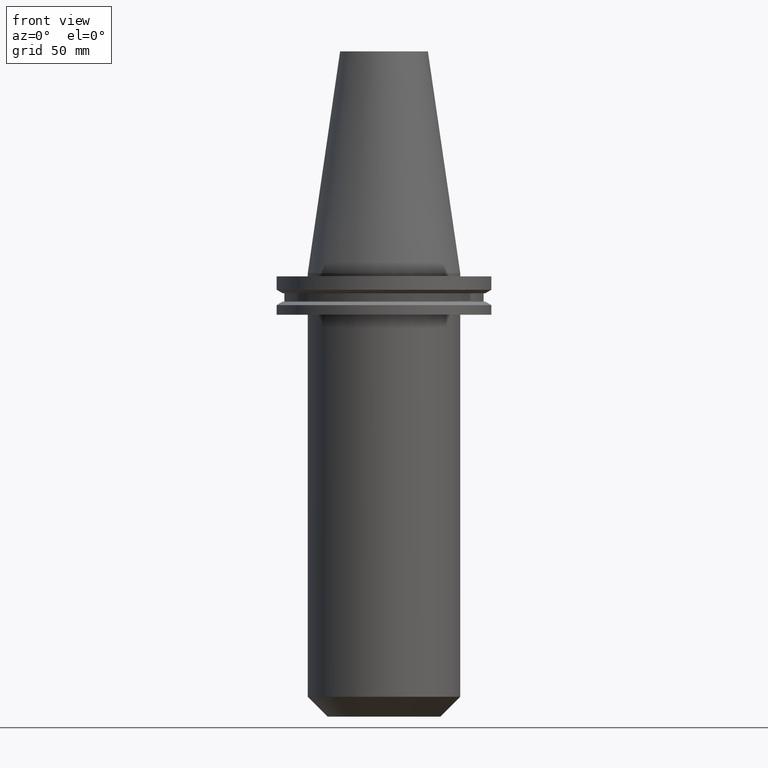
[diagram: clean part render]
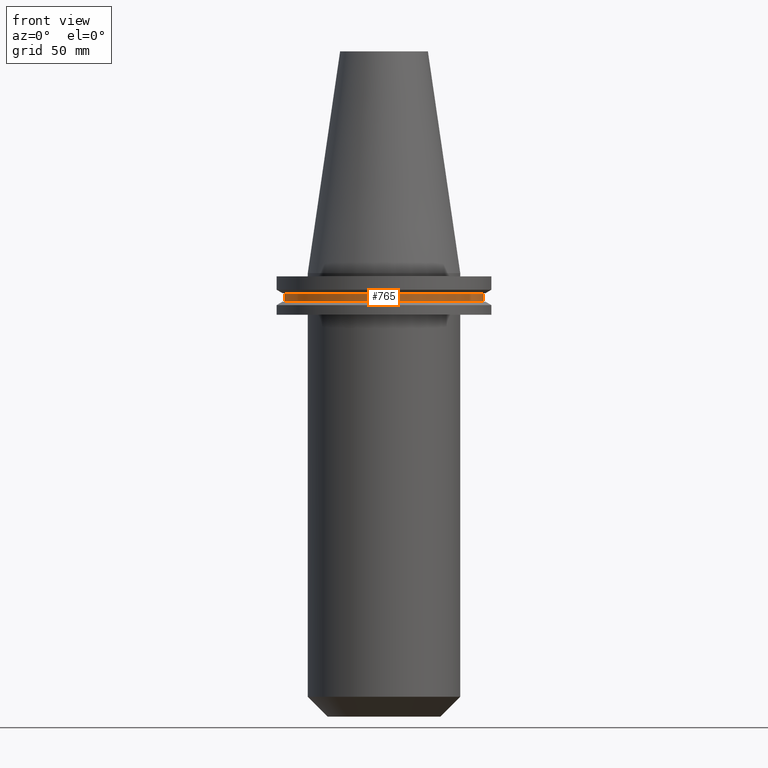
[diagram: same view with one face highlighted and labeled with its STEP entity id]
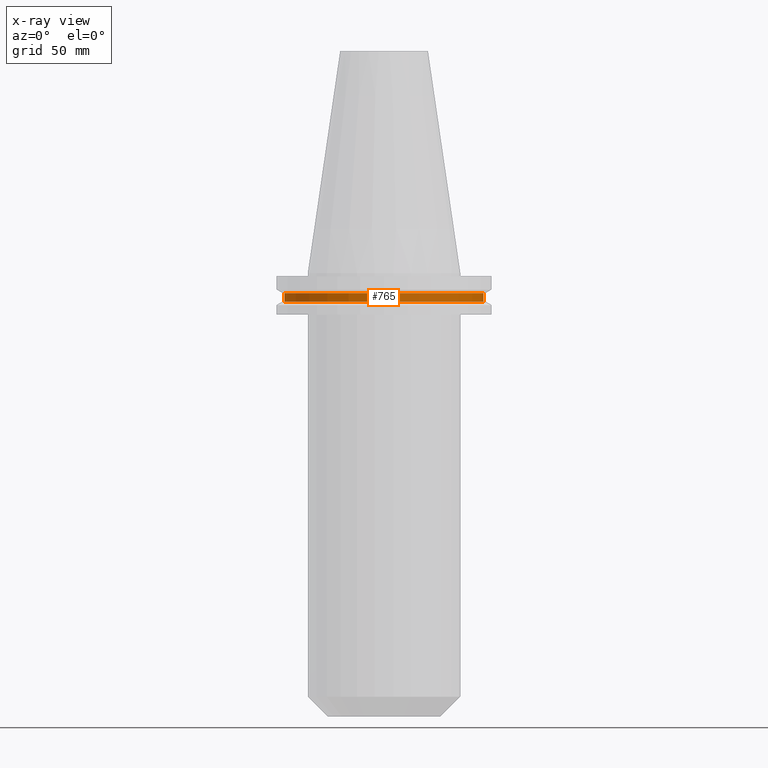
[diagram: x-ray of the same camera — body ghosted, the highlighted face saturated]
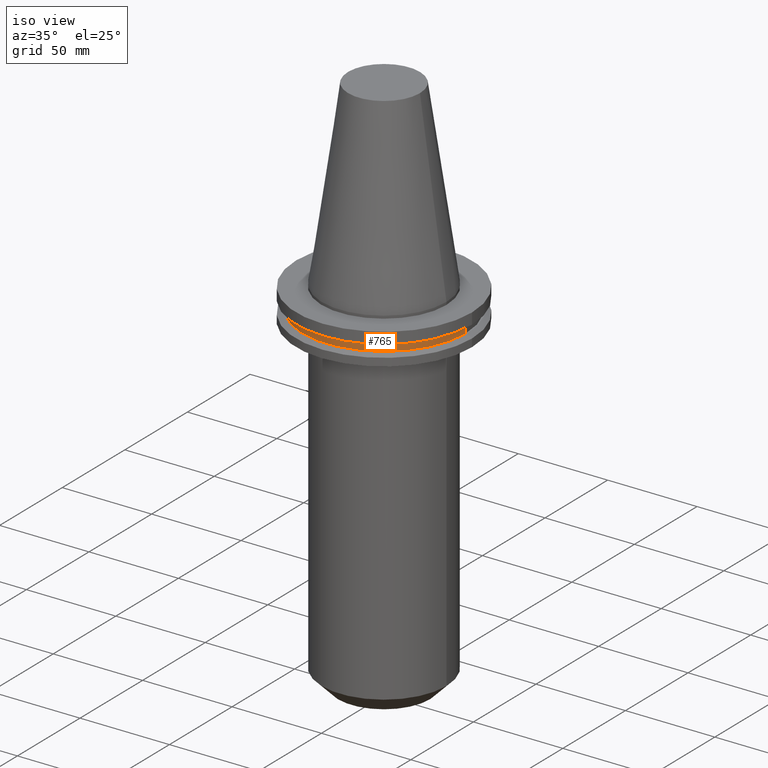
[diagram: same view with one face highlighted and labeled with its STEP entity id]
A machine part, front view. The second image highlights one B-rep face of the part: STEP entity #765.
The next image is the same camera in x-ray: the body ghosted, the highlighted face saturated — about 0% of this face is hidden behind the body in this view.
A second angle (iso view) of the same face is appended — the face is thin or edge-on in the first view.
In plain terms, the highlighted cylindrical surface (partial cylindrical patch) has radius 45.645 mm, axis along (-0, -0, 1).
Its self-contained STEP definition (entity closure, byte-faithful):
#24 = CIRCLE ( 'NONE', #428, 45.64500000000000313 ) ;
#30 = CARTESIAN_POINT ( 'NONE',  ( 0.000000000000000000, 0.000000000000000000, 101.5999999999999943 ) ) ;
#43 = ORIENTED_EDGE ( 'NONE', *, *, #228, .F. ) ;
#45 = LINE ( 'NONE', #622, #679 ) ;
#75 = EDGE_LOOP ( 'NONE', ( #160, #721, #178, #43 ) ) ;
#98 = VECTOR ( 'NONE', #143, 1000.000000000000000 ) ;
#103 = CARTESIAN_POINT ( 'NONE',  ( 45.64500000000000313, 0.000000000000000000, -13.05499999999999794 ) ) ;
#113 = CARTESIAN_POINT ( 'NONE',  ( 45.64500000000000313, 0.000000000000000000, -9.204999999999991189 ) ) ;
#143 = DIRECTION ( 'NONE',  ( -0.000000000000000000, -0.000000000000000000, 1.000000000000000000 ) ) ;
#160 = ORIENTED_EDGE ( 'NONE', *, *, #436, .F. ) ;
#177 = CARTESIAN_POINT ( 'NONE',  ( 0.000000000000000000, 0.000000000000000000, -13.05499999999999794 ) ) ;
#178 = ORIENTED_EDGE ( 'NONE', *, *, #267, .T. ) ;
#207 = CYLINDRICAL_SURFACE ( 'NONE', #343, 45.64500000000000313 ) ;
#221 = CIRCLE ( 'NONE', #352, 45.64500000000000313 ) ;
#228 = EDGE_CURVE ( 'NONE', #346, #401, #24, .T. ) ;
#259 = DIRECTION ( 'NONE',  ( -0.000000000000000000, -0.000000000000000000, 1.000000000000000000 ) ) ;
#267 = EDGE_CURVE ( 'NONE', #435, #401, #442, .T. ) ;
#301 = DIRECTION ( 'NONE',  ( 1.000000000000000000, 0.000000000000000000, 0.000000000000000000 ) ) ;
#327 = CARTESIAN_POINT ( 'NONE',  ( -45.64500000000000313, 5.589900314708094957E-15, -13.05499999999999794 ) ) ;
#343 = AXIS2_PLACEMENT_3D ( 'NONE', #30, #440, #607 ) ;
#346 = VERTEX_POINT ( 'NONE', #431 ) ;
#352 = AXIS2_PLACEMENT_3D ( 'NONE', #177, #718, #301 ) ;
#401 = VERTEX_POINT ( 'NONE', #113 ) ;
#428 = AXIS2_PLACEMENT_3D ( 'NONE', #673, #259, #502 ) ;
#431 = CARTESIAN_POINT ( 'NONE',  ( -45.64500000000000313, 5.589900314708094957E-15, -9.204999999999991189 ) ) ;
#435 = VERTEX_POINT ( 'NONE', #103 ) ;
#436 = EDGE_CURVE ( 'NONE', #456, #346, #45, .T. ) ;
#440 = DIRECTION ( 'NONE',  ( -0.000000000000000000, -0.000000000000000000, 1.000000000000000000 ) ) ;
#442 = LINE ( 'NONE', #499, #98 ) ;
#456 = VERTEX_POINT ( 'NONE', #327 ) ;
#485 = EDGE_CURVE ( 'NONE', #456, #435, #221, .T. ) ;
#499 = CARTESIAN_POINT ( 'NONE',  ( 45.64500000000000313, 0.000000000000000000, 101.5999999999999943 ) ) ;
#502 = DIRECTION ( 'NONE',  ( 1.000000000000000000, 0.000000000000000000, 0.000000000000000000 ) ) ;
#607 = DIRECTION ( 'NONE',  ( 1.000000000000000000, 0.000000000000000000, 0.000000000000000000 ) ) ;
#622 = CARTESIAN_POINT ( 'NONE',  ( -45.64500000000000313, 5.589900314708094957E-15, 101.5999999999999943 ) ) ;
#626 = DIRECTION ( 'NONE',  ( -0.000000000000000000, -0.000000000000000000, 1.000000000000000000 ) ) ;
#673 = CARTESIAN_POINT ( 'NONE',  ( 0.000000000000000000, 0.000000000000000000, -9.204999999999991189 ) ) ;
#679 = VECTOR ( 'NONE', #626, 1000.000000000000000 ) ;
#718 = DIRECTION ( 'NONE',  ( -0.000000000000000000, -0.000000000000000000, 1.000000000000000000 ) ) ;
#721 = ORIENTED_EDGE ( 'NONE', *, *, #485, .T. ) ;
#735 = FACE_OUTER_BOUND ( 'NONE', #75, .T. ) ;
#765 = ADVANCED_FACE ( 'NONE', ( #735 ), #207, .T. ) ;